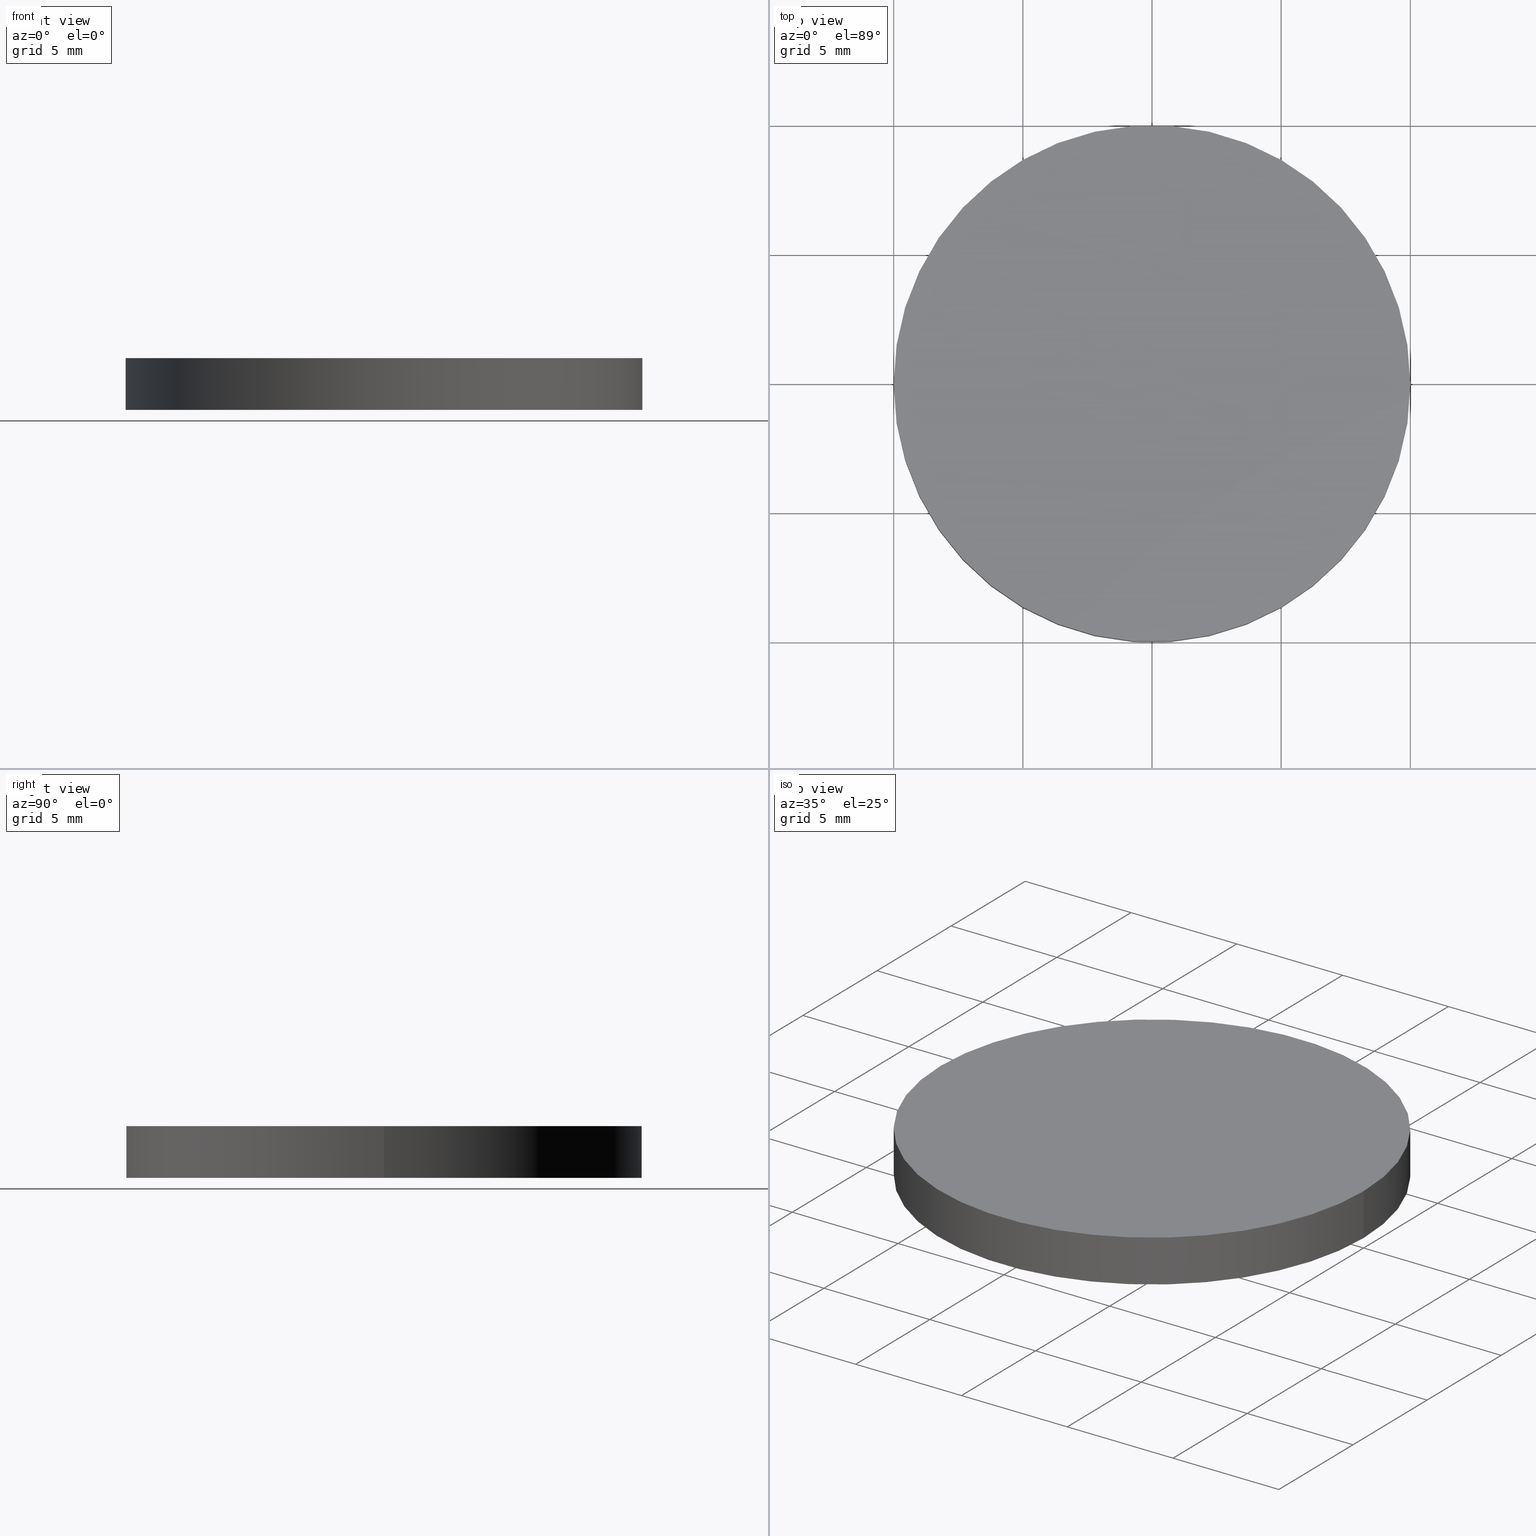
[diagram: canonical four-view strip — front | top / right | iso, engineering-drawing reading convention]
A machine part, canonical four-view strip (front | top / right | iso — engineering-drawing reading convention). The complete STEP part file that produces these views, byte-faithful:
ISO-10303-21;
HEADER;
FILE_DESCRIPTION (( 'STEP AP214' ),
    '1' );
FILE_NAME ('180004.STEP',
    '2019-07-09T05:22:35',
    ( 'user' ),
    ( '΢���й�' ),
    'SwSTEP 2.0',
    'SolidWorks 2016',
    '' );
FILE_SCHEMA (( 'AUTOMOTIVE_DESIGN' ));
ENDSEC;

DATA;
#1 =( NAMED_UNIT ( * ) SI_UNIT ( $, .STERADIAN. ) SOLID_ANGLE_UNIT ( ) );
#2 = CARTESIAN_POINT ( 'NONE',  ( -10.00000000000000000, 0.0000000000000000000, 2.000000000000000000 ) ) ;
#3 = ORIENTED_EDGE ( 'NONE', *, *, #37, .T. ) ;
#4 = PRODUCT_CONTEXT ( 'NONE', #14, 'mechanical' ) ;
#5 = DIRECTION ( 'NONE',  ( 1.000000000000000000, 0.0000000000000000000, -0.0000000000000000000 ) ) ;
#6 = APPLICATION_PROTOCOL_DEFINITION ( 'draft international standard', 'automotive_design', 1998, #14 ) ;
#7 = PRODUCT_RELATED_PRODUCT_CATEGORY ( 'part', '', ( #117 ) ) ;
#8 = PRESENTATION_STYLE_ASSIGNMENT (( #80 ) ) ;
#9 = UNCERTAINTY_MEASURE_WITH_UNIT (LENGTH_MEASURE( 1.000000000000000100E-005 ), #124, 'distance_accuracy_value', 'NONE');
#10 = ORIENTED_EDGE ( 'NONE', *, *, #110, .T. ) ;
#11 = DIRECTION ( 'NONE',  ( -0.0000000000000000000, -0.0000000000000000000, -1.000000000000000000 ) ) ;
#12 = DIRECTION ( 'NONE',  ( -1.000000000000000000, 0.0000000000000000000, 0.0000000000000000000 ) ) ;
#13 = EDGE_LOOP ( 'NONE', ( #31, #99 ) ) ;
#14 = APPLICATION_CONTEXT ( 'automotive_design' ) ;
#15 = FACE_OUTER_BOUND ( 'NONE', #13, .T. ) ;
#16 = ORIENTED_EDGE ( 'NONE', *, *, #110, .F. ) ;
#17 = AXIS2_PLACEMENT_3D ( 'NONE', #113, #26, #77 ) ;
#18 = VERTEX_POINT ( 'NONE', #50 ) ;
#19 = ADVANCED_FACE ( 'NONE', ( #36 ), #94, .T. ) ;
#20 = MANIFOLD_SOLID_BREP ( '͹̨-����1', #40 ) ;
#21 = EDGE_LOOP ( 'NONE', ( #87, #10, #23, #140 ) ) ;
#22 = SURFACE_STYLE_FILL_AREA ( #96 ) ;
#23 = ORIENTED_EDGE ( 'NONE', *, *, #34, .T. ) ;
#24 = DIRECTION ( 'NONE',  ( 1.000000000000000000, 0.0000000000000000000, 0.0000000000000000000 ) ) ;
#25 = DIRECTION ( 'NONE',  ( 0.0000000000000000000, 0.0000000000000000000, 1.000000000000000000 ) ) ;
#26 = DIRECTION ( 'NONE',  ( 0.0000000000000000000, 0.0000000000000000000, 1.000000000000000000 ) ) ;
#27 = FACE_OUTER_BOUND ( 'NONE', #79, .T. ) ;
#28 =( NAMED_UNIT ( * ) PLANE_ANGLE_UNIT ( ) SI_UNIT ( $, .RADIAN. ) );
#29 =( NAMED_UNIT ( * ) SI_UNIT ( $, .STERADIAN. ) SOLID_ANGLE_UNIT ( ) );
#30 =( LENGTH_UNIT ( ) NAMED_UNIT ( * ) SI_UNIT ( .MILLI., .METRE. ) );
#31 = ORIENTED_EDGE ( 'NONE', *, *, #100, .F. ) ;
#32 = VERTEX_POINT ( 'NONE', #38 ) ;
#33 = VECTOR ( 'NONE', #121, 1000.000000000000000 ) ;
#34 = EDGE_CURVE ( 'NONE', #43, #91, #54, .T. ) ;
#35 = SURFACE_SIDE_STYLE ('',( #66 ) ) ;
#36 = FACE_OUTER_BOUND ( 'NONE', #53, .T. ) ;
#37 = EDGE_CURVE ( 'NONE', #18, #91, #39, .T. ) ;
#38 = CARTESIAN_POINT ( 'NONE',  ( 10.00000000000000000, 1.224646799147353300E-015, 2.000000000000000000 ) ) ;
#39 = LINE ( 'NONE', #2, #114 ) ;
#40 = CLOSED_SHELL ( 'NONE', ( #42, #119, #19, #127 ) ) ;
#41 =( GEOMETRIC_REPRESENTATION_CONTEXT ( 3 ) GLOBAL_UNCERTAINTY_ASSIGNED_CONTEXT ( ( #129 ) ) GLOBAL_UNIT_ASSIGNED_CONTEXT ( ( #30, #90, #29 ) ) REPRESENTATION_CONTEXT ( 'NONE', 'WORKASPACE' ) );
#42 = ADVANCED_FACE ( 'NONE', ( #61 ), #137, .T. ) ;
#43 = VERTEX_POINT ( 'NONE', #111 ) ;
#44 = PRODUCT_DEFINITION_SHAPE ( 'NONE', 'NONE',  #132 ) ;
#45 = COLOUR_RGB ( '',1.000000000000000000, 1.000000000000000000, 1.000000000000000000 ) ;
#46 = DIRECTION ( 'NONE',  ( 0.0000000000000000000, 0.0000000000000000000, 1.000000000000000000 ) ) ;
#47 = DIRECTION ( 'NONE',  ( 1.000000000000000000, 0.0000000000000000000, -0.0000000000000000000 ) ) ;
#48 = FILL_AREA_STYLE ('',( #136 ) ) ;
#49 = ORIENTED_EDGE ( 'NONE', *, *, #56, .F. ) ;
#50 = CARTESIAN_POINT ( 'NONE',  ( -10.00000000000000000, 0.0000000000000000000, 2.000000000000000000 ) ) ;
#51 = SHAPE_DEFINITION_REPRESENTATION ( #44, #75 ) ;
#52 = APPLICATION_CONTEXT ( 'automotive_design' ) ;
#53 = EDGE_LOOP ( 'NONE', ( #68, #57 ) ) ;
#54 = CIRCLE ( 'NONE', #128, 10.00000000000000000 ) ;
#55 = AXIS2_PLACEMENT_3D ( 'NONE', #135, #11, #12 ) ;
#56 = EDGE_CURVE ( 'NONE', #18, #32, #64, .T. ) ;
#57 = ORIENTED_EDGE ( 'NONE', *, *, #71, .T. ) ;
#58 = AXIS2_PLACEMENT_3D ( 'NONE', #81, #62, #72 ) ;
#59 = AXIS2_PLACEMENT_3D ( 'NONE', #60, #95, #47 ) ;
#60 = CARTESIAN_POINT ( 'NONE',  ( 0.0000000000000000000, 0.0000000000000000000, 2.000000000000000000 ) ) ;
#61 = FACE_OUTER_BOUND ( 'NONE', #21, .T. ) ;
#62 = DIRECTION ( 'NONE',  ( 0.0000000000000000000, 0.0000000000000000000, 1.000000000000000000 ) ) ;
#63 =( GEOMETRIC_REPRESENTATION_CONTEXT ( 3 ) GLOBAL_UNCERTAINTY_ASSIGNED_CONTEXT ( ( #131 ) ) GLOBAL_UNIT_ASSIGNED_CONTEXT ( ( #123, #88, #74 ) ) REPRESENTATION_CONTEXT ( 'NONE', 'WORKASPACE' ) );
#64 = CIRCLE ( 'NONE', #17, 10.00000000000000000 ) ;
#65 = ORIENTED_EDGE ( 'NONE', *, *, #100, .T. ) ;
#66 = SURFACE_STYLE_FILL_AREA ( #48 ) ;
#67 = DIRECTION ( 'NONE',  ( -0.0000000000000000000, -0.0000000000000000000, -1.000000000000000000 ) ) ;
#68 = ORIENTED_EDGE ( 'NONE', *, *, #56, .T. ) ;
#69 = DIRECTION ( 'NONE',  ( -0.0000000000000000000, -0.0000000000000000000, -1.000000000000000000 ) ) ;
#70 = AXIS2_PLACEMENT_3D ( 'NONE', #86, #98, #5 ) ;
#71 = EDGE_CURVE ( 'NONE', #32, #18, #122, .T. ) ;
#72 = DIRECTION ( 'NONE',  ( 1.000000000000000000, 0.0000000000000000000, 0.0000000000000000000 ) ) ;
#73 = CARTESIAN_POINT ( 'NONE',  ( 0.0000000000000000000, 0.0000000000000000000, 0.0000000000000000000 ) ) ;
#74 =( NAMED_UNIT ( * ) SI_UNIT ( $, .STERADIAN. ) SOLID_ANGLE_UNIT ( ) );
#75 = ADVANCED_BREP_SHAPE_REPRESENTATION ( '180004', ( #20, #125 ), #63 ) ;
#76 = PLANE ( 'NONE',  #70 ) ;
#77 = DIRECTION ( 'NONE',  ( 1.000000000000000000, 0.0000000000000000000, 0.0000000000000000000 ) ) ;
#78 = CYLINDRICAL_SURFACE ( 'NONE', #55, 10.00000000000000000 ) ;
#79 = EDGE_LOOP ( 'NONE', ( #16, #49, #3, #65 ) ) ;
#80 = SURFACE_STYLE_USAGE ( .BOTH. , #97 ) ;
#81 = CARTESIAN_POINT ( 'NONE',  ( 0.0000000000000000000, 0.0000000000000000000, 2.000000000000000000 ) ) ;
#82 = PRODUCT_DEFINITION_CONTEXT ( 'detailed design', #52, 'design' ) ;
#83 = DIRECTION ( 'NONE',  ( 1.000000000000000000, 0.0000000000000000000, 0.0000000000000000000 ) ) ;
#84 = CARTESIAN_POINT ( 'NONE',  ( 10.00000000000000000, 1.224646799147353300E-015, 2.000000000000000000 ) ) ;
#85 = PRESENTATION_STYLE_ASSIGNMENT (( #130 ) ) ;
#86 = CARTESIAN_POINT ( 'NONE',  ( 0.0000000000000000000, 0.0000000000000000000, 0.0000000000000000000 ) ) ;
#87 = ORIENTED_EDGE ( 'NONE', *, *, #71, .F. ) ;
#88 =( NAMED_UNIT ( * ) PLANE_ANGLE_UNIT ( ) SI_UNIT ( $, .RADIAN. ) );
#89 = STYLED_ITEM ( 'NONE', ( #8 ), #75 ) ;
#90 =( NAMED_UNIT ( * ) PLANE_ANGLE_UNIT ( ) SI_UNIT ( $, .RADIAN. ) );
#91 = VERTEX_POINT ( 'NONE', #103 ) ;
#92 = STYLED_ITEM ( 'NONE', ( #85 ), #20 ) ;
#93 = PRESENTATION_LAYER_ASSIGNMENT (  '', '', ( #89 ) ) ;
#94 = PLANE ( 'NONE',  #59 ) ;
#95 = DIRECTION ( 'NONE',  ( 0.0000000000000000000, 0.0000000000000000000, 1.000000000000000000 ) ) ;
#96 = FILL_AREA_STYLE ('',( #108 ) ) ;
#97 = SURFACE_SIDE_STYLE ('',( #22 ) ) ;
#98 = DIRECTION ( 'NONE',  ( 0.0000000000000000000, 0.0000000000000000000, 1.000000000000000000 ) ) ;
#99 = ORIENTED_EDGE ( 'NONE', *, *, #34, .F. ) ;
#100 = EDGE_CURVE ( 'NONE', #91, #43, #102, .T. ) ;
#101 = MECHANICAL_DESIGN_GEOMETRIC_PRESENTATION_REPRESENTATION (  '', ( #89 ), #107 ) ;
#102 = CIRCLE ( 'NONE', #109, 10.00000000000000000 ) ;
#103 = CARTESIAN_POINT ( 'NONE',  ( -10.00000000000000000, 0.0000000000000000000, 0.0000000000000000000 ) ) ;
#104 = CARTESIAN_POINT ( 'NONE',  ( 0.0000000000000000000, 0.0000000000000000000, 0.0000000000000000000 ) ) ;
#105 = COLOUR_RGB ( '',1.000000000000000000, 1.000000000000000000, 1.000000000000000000 ) ;
#106 = CARTESIAN_POINT ( 'NONE',  ( 0.0000000000000000000, 0.0000000000000000000, 2.000000000000000000 ) ) ;
#107 =( GEOMETRIC_REPRESENTATION_CONTEXT ( 3 ) GLOBAL_UNCERTAINTY_ASSIGNED_CONTEXT ( ( #9 ) ) GLOBAL_UNIT_ASSIGNED_CONTEXT ( ( #124, #28, #1 ) ) REPRESENTATION_CONTEXT ( 'NONE', 'WORKASPACE' ) );
#108 = FILL_AREA_STYLE_COLOUR ( '', #105 ) ;
#109 = AXIS2_PLACEMENT_3D ( 'NONE', #120, #46, #24 ) ;
#110 = EDGE_CURVE ( 'NONE', #32, #43, #139, .T. ) ;
#111 = CARTESIAN_POINT ( 'NONE',  ( 10.00000000000000000, 1.224646799147353300E-015, 0.0000000000000000000 ) ) ;
#112 = PRESENTATION_LAYER_ASSIGNMENT (  '', '', ( #92 ) ) ;
#113 = CARTESIAN_POINT ( 'NONE',  ( 0.0000000000000000000, 0.0000000000000000000, 2.000000000000000000 ) ) ;
#114 = VECTOR ( 'NONE', #67, 1000.000000000000000 ) ;
#115 = DIRECTION ( 'NONE',  ( 1.000000000000000000, 0.0000000000000000000, 0.0000000000000000000 ) ) ;
#116 = DIRECTION ( 'NONE',  ( 0.0000000000000000000, 0.0000000000000000000, 1.000000000000000000 ) ) ;
#117 = PRODUCT ( '180004', '180004', '', ( #4 ) ) ;
#118 = MECHANICAL_DESIGN_GEOMETRIC_PRESENTATION_REPRESENTATION (  '', ( #92 ), #41 ) ;
#119 = ADVANCED_FACE ( 'NONE', ( #27 ), #78, .T. ) ;
#120 = CARTESIAN_POINT ( 'NONE',  ( 0.0000000000000000000, 0.0000000000000000000, 0.0000000000000000000 ) ) ;
#121 = DIRECTION ( 'NONE',  ( -0.0000000000000000000, -0.0000000000000000000, -1.000000000000000000 ) ) ;
#122 = CIRCLE ( 'NONE', #58, 10.00000000000000000 ) ;
#123 =( LENGTH_UNIT ( ) NAMED_UNIT ( * ) SI_UNIT ( .MILLI., .METRE. ) );
#124 =( LENGTH_UNIT ( ) NAMED_UNIT ( * ) SI_UNIT ( .MILLI., .METRE. ) );
#125 = AXIS2_PLACEMENT_3D ( 'NONE', #73, #116, #115 ) ;
#126 = AXIS2_PLACEMENT_3D ( 'NONE', #106, #69, #133 ) ;
#127 = ADVANCED_FACE ( 'NONE', ( #15 ), #76, .F. ) ;
#128 = AXIS2_PLACEMENT_3D ( 'NONE', #104, #25, #83 ) ;
#129 = UNCERTAINTY_MEASURE_WITH_UNIT (LENGTH_MEASURE( 1.000000000000000100E-005 ), #30, 'distance_accuracy_value', 'NONE');
#130 = SURFACE_STYLE_USAGE ( .BOTH. , #35 ) ;
#131 = UNCERTAINTY_MEASURE_WITH_UNIT (LENGTH_MEASURE( 1.000000000000000100E-005 ), #123, 'distance_accuracy_value', 'NONE');
#132 = PRODUCT_DEFINITION ( 'δ֪', '', #138, #82 ) ;
#133 = DIRECTION ( 'NONE',  ( -1.000000000000000000, 0.0000000000000000000, 0.0000000000000000000 ) ) ;
#134 = APPLICATION_PROTOCOL_DEFINITION ( 'draft international standard', 'automotive_design', 1998, #52 ) ;
#135 = CARTESIAN_POINT ( 'NONE',  ( 0.0000000000000000000, 0.0000000000000000000, 2.000000000000000000 ) ) ;
#136 = FILL_AREA_STYLE_COLOUR ( '', #45 ) ;
#137 = CYLINDRICAL_SURFACE ( 'NONE', #126, 10.00000000000000000 ) ;
#138 = PRODUCT_DEFINITION_FORMATION_WITH_SPECIFIED_SOURCE ( '�κ�', '', #117, .NOT_KNOWN. ) ;
#139 = LINE ( 'NONE', #84, #33 ) ;
#140 = ORIENTED_EDGE ( 'NONE', *, *, #37, .F. ) ;
ENDSEC;
END-ISO-10303-21;
